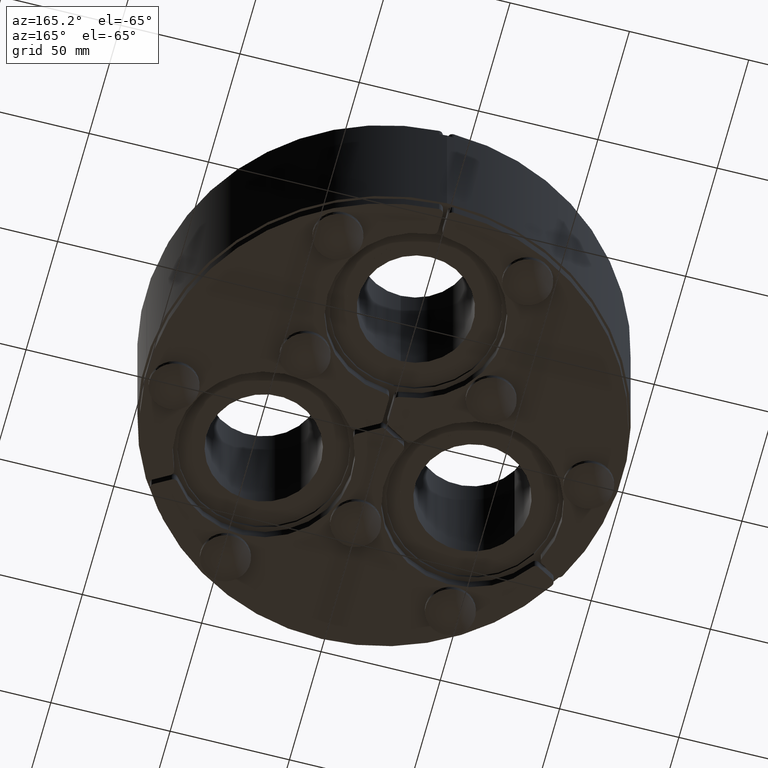
[diagram: clean part render]
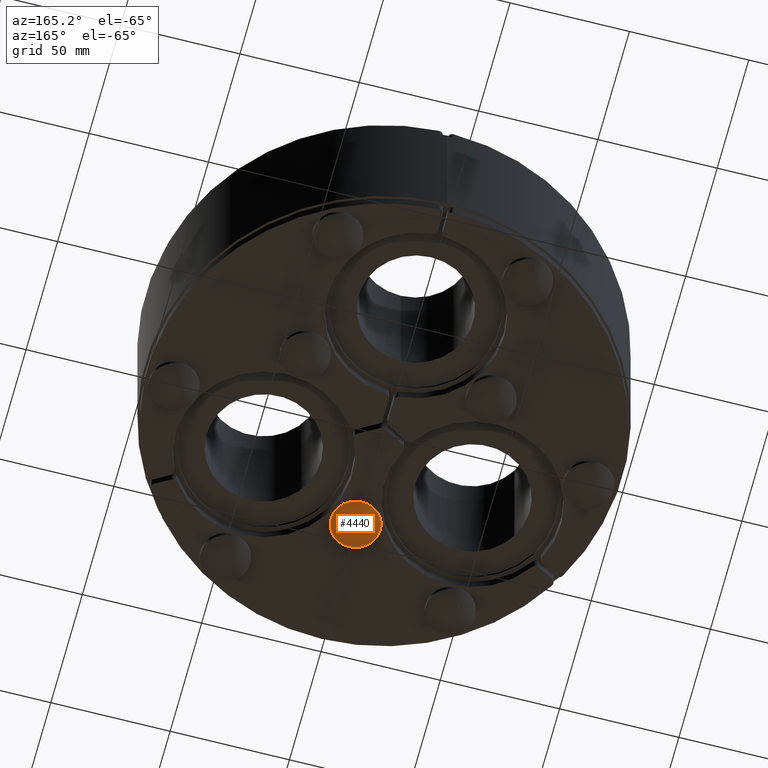
[diagram: same view with one face highlighted and labeled with its STEP entity id]
A machine part, auxiliary view. The second image highlights one B-rep face of the part: STEP entity #4440.
In plain terms, the highlighted spherical surface has radius 16 mm.
Its self-contained STEP definition (entity closure, byte-faithful):
#4424=CARTESIAN_POINT('',(11.120000000000005,0.0,0.0));
#4425=DIRECTION('',(0.0,0.0,1.0));
#4426=DIRECTION('',(1.0,0.0,0.0));
#4427=AXIS2_PLACEMENT_3D('',#4424,#4425,#4426);
#4428=SPHERICAL_SURFACE('',#4427,16.000000000000004);
#4429=CARTESIAN_POINT('',(-1.102699169986955,10.325000000000003,0.0));
#4430=VERTEX_POINT('',#4429);
#4431=CARTESIAN_POINT('',(-1.102699169986963,-1.034504E-033,0.0));
#4432=DIRECTION('',(1.0,0.0,0.0));
#4433=DIRECTION('',(0.0,1.0,0.0));
#4434=AXIS2_PLACEMENT_3D('',#4431,#4432,#4433);
#4435=CIRCLE('',#4434,10.325000000000003);
#4436=EDGE_CURVE('',#4430,#4430,#4435,.T.);
#4437=ORIENTED_EDGE('',*,*,#4436,.F.);
#4438=EDGE_LOOP('',(#4437));
#4439=FACE_OUTER_BOUND('',#4438,.T.);
#4440=ADVANCED_FACE('',(#4439),#4428,.T.);